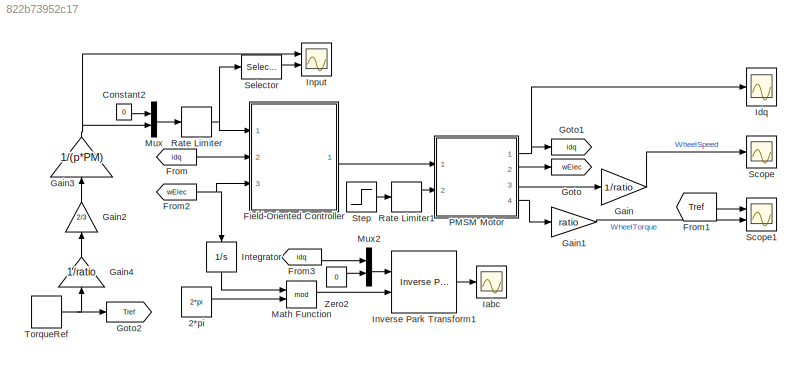
MODEL slx_822b73952c17
KIND model
CONFIG AbsTol = auto
CONFIG EnableMultiTasking = off
CONFIG FixedStep = auto
CONFIG InitFcn = %DriveTrainInitialise;
CONFIG MaxStep = 1e-5
CONFIG MinStep = auto
CONFIG RelTol = 1e-3
CONFIG SampleTimeConstraint = Unconstrained
CONFIG Solver = VariableStepAuto
CONFIG SolverName = VariableStepAuto
CONFIG StartTime = 0.0
CONFIG StopTime = 2
BLOCK [Constant] 2*pi
  SampleTime = Tsc
  Value = 2*pi
BLOCK [Constant] Constant2
  Value = 0
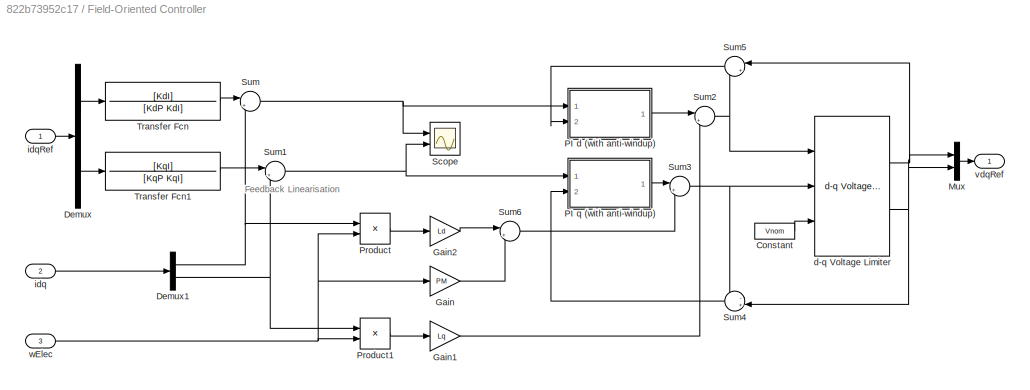
BLOCK [SubSystem] Field-Oriented Controller
  Ports = [3, 1]
  RequestExecContextInheritance = off
BLOCK [Constant] Field-Oriented Controller/Constant
  Value = Vnom
BLOCK [Demux] Field-Oriented Controller/Demux
  DisplayOption = bar
  Outputs = 2
  Ports = [1, 2]
BLOCK [Demux] Field-Oriented Controller/Demux1
  DisplayOption = bar
  Outputs = 2
  Ports = [1, 2]
BLOCK [Gain] Field-Oriented Controller/Gain
  Gain = PM
  OutDataTypeStr = Inherit: Inherit via internal rule
  ParamDataTypeStr = Inherit: Inherit via internal rule
  SaturateOnIntegerOverflow = off
BLOCK [Gain] Field-Oriented Controller/Gain1
  Gain = Lq
  OutDataTypeStr = Inherit: Inherit via internal rule
  ParamDataTypeStr = Inherit: Inherit via internal rule
  SaturateOnIntegerOverflow = off
BLOCK [Gain] Field-Oriented Controller/Gain2
  Gain = Ld
  OutDataTypeStr = Inherit: Inherit via internal rule
  ParamDataTypeStr = Inherit: Inherit via internal rule
  SaturateOnIntegerOverflow = off
BLOCK [Mux] Field-Oriented Controller/Mux
  DisplayOption = bar
  Inputs = 2
  Ports = [2, 1]
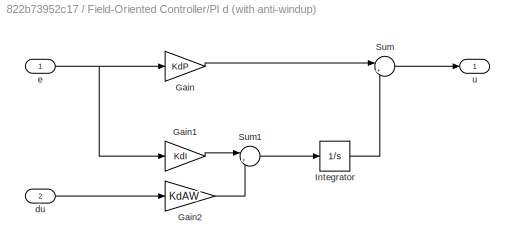
BLOCK [SubSystem] Field-Oriented Controller/PI d (with anti-windup)
  Ports = [2, 1]
  RequestExecContextInheritance = off
BLOCK [Gain] Field-Oriented Controller/PI d (with anti-windup)/Gain
  Gain = KdP
  OutDataTypeStr = Inherit: Inherit via internal rule
  ParamDataTypeStr = Inherit: Inherit via internal rule
  SaturateOnIntegerOverflow = off
BLOCK [Gain] Field-Oriented Controller/PI d (with anti-windup)/Gain1
  Gain = KdI
  OutDataTypeStr = Inherit: Inherit via internal rule
  ParamDataTypeStr = Inherit: Inherit via internal rule
  SaturateOnIntegerOverflow = off
BLOCK [Gain] Field-Oriented Controller/PI d (with anti-windup)/Gain2
  Gain = KdAW
  OutDataTypeStr = Inherit: Inherit via internal rule
  ParamDataTypeStr = Inherit: Inherit via internal rule
  SaturateOnIntegerOverflow = off
BLOCK [Integrator] Field-Oriented Controller/PI d (with anti-windup)/Integrator
  Ports = [1, 1]
BLOCK [Sum] Field-Oriented Controller/PI d (with anti-windup)/Sum
  IconShape = round
  InputSameDT = off
  Inputs = |++
  OutDataTypeStr = Inherit: Inherit via internal rule
  Ports = [2, 1]
  SaturateOnIntegerOverflow = off
BLOCK [Sum] Field-Oriented Controller/PI d (with anti-windup)/Sum1
  IconShape = round
  InputSameDT = off
  Inputs = |++
  OutDataTypeStr = Inherit: Inherit via internal rule
  Ports = [2, 1]
  SaturateOnIntegerOverflow = off
BLOCK [Inport] Field-Oriented Controller/PI d (with anti-windup)/du
  IconDisplay = Port number
  Port = 2
  SampleTime = Ts
BLOCK [Inport] Field-Oriented Controller/PI d (with anti-windup)/e
  IconDisplay = Port number
  SampleTime = Ts
BLOCK [Outport] Field-Oriented Controller/PI d (with anti-windup)/u
  IconDisplay = Port number
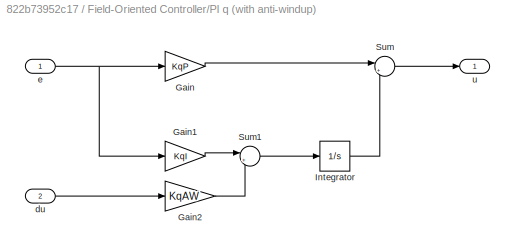
BLOCK [SubSystem] Field-Oriented Controller/PI q (with anti-windup)
  Ports = [2, 1]
  RequestExecContextInheritance = off
BLOCK [Gain] Field-Oriented Controller/PI q (with anti-windup)/Gain
  Gain = KqP
  OutDataTypeStr = Inherit: Inherit via internal rule
  ParamDataTypeStr = Inherit: Inherit via internal rule
  SaturateOnIntegerOverflow = off
BLOCK [Gain] Field-Oriented Controller/PI q (with anti-windup)/Gain1
  Gain = KqI
  OutDataTypeStr = Inherit: Inherit via internal rule
  ParamDataTypeStr = Inherit: Inherit via internal rule
  SaturateOnIntegerOverflow = off
BLOCK [Gain] Field-Oriented Controller/PI q (with anti-windup)/Gain2
  Gain = KqAW
  OutDataTypeStr = Inherit: Inherit via internal rule
  ParamDataTypeStr = Inherit: Inherit via internal rule
  SaturateOnIntegerOverflow = off
BLOCK [Integrator] Field-Oriented Controller/PI q (with anti-windup)/Integrator
  Ports = [1, 1]
BLOCK [Sum] Field-Oriented Controller/PI q (with anti-windup)/Sum
  IconShape = round
  InputSameDT = off
  Inputs = |++
  OutDataTypeStr = Inherit: Inherit via internal rule
  Ports = [2, 1]
  SaturateOnIntegerOverflow = off
BLOCK [Sum] Field-Oriented Controller/PI q (with anti-windup)/Sum1
  IconShape = round
  InputSameDT = off
  Inputs = |++
  OutDataTypeStr = Inherit: Inherit via internal rule
  Ports = [2, 1]
  SaturateOnIntegerOverflow = off
BLOCK [Inport] Field-Oriented Controller/PI q (with anti-windup)/du
  IconDisplay = Port number
  Port = 2
  SampleTime = Ts
BLOCK [Inport] Field-Oriented Controller/PI q (with anti-windup)/e
  IconDisplay = Port number
  SampleTime = Ts
BLOCK [Outport] Field-Oriented Controller/PI q (with anti-windup)/u
  IconDisplay = Port number
BLOCK [Product] Field-Oriented Controller/Product
  InputSameDT = off
  OutDataTypeStr = Inherit: Inherit via internal rule
  Ports = [2, 1]
  RndMeth = Floor
  SaturateOnIntegerOverflow = off
BLOCK [Product] Field-Oriented Controller/Product1
  InputSameDT = off
  OutDataTypeStr = Inherit: Inherit via internal rule
  Ports = [2, 1]
  RndMeth = Floor
  SaturateOnIntegerOverflow = off
BLOCK [Scope] Field-Oriented Controller/Scope
  Floating = off
  NumInputPorts = 2
  Ports = [2]
  ScopeSpecificationString = Simulink.scopes.TimeScopeBlockCfg('CurrentConfiguration', extmgr.ConfigurationSet(extmgr.Configuration('Core','General UI',true),extmgr.Configuration('Core','Source UI',true),extmgr.Configuration('Sources','WiredSimulink',true,'DataLoggingVariableName','ScopeData2'),extmgr.Configuration('Visuals','Time Domain',true,'SerializedDisplays',{struct('MinYLimReal','-0.00737','MaxYLimReal','0.06634','YLab...<+1396ch>
BLOCK [Sum] Field-Oriented Controller/Sum
  IconShape = round
  InputSameDT = off
  Inputs = |+-
  OutDataTypeStr = Inherit: Inherit via internal rule
  Ports = [2, 1]
  SaturateOnIntegerOverflow = off
BLOCK [Sum] Field-Oriented Controller/Sum1
  IconShape = round
  InputSameDT = off
  Inputs = |+-
  OutDataTypeStr = Inherit: Inherit via internal rule
  Ports = [2, 1]
  SaturateOnIntegerOverflow = off
BLOCK [Sum] Field-Oriented Controller/Sum2
  IconShape = round
  InputSameDT = off
  Inputs = |+-
  OutDataTypeStr = Inherit: Inherit via internal rule
  Ports = [2, 1]
  SaturateOnIntegerOverflow = off
BLOCK [Sum] Field-Oriented Controller/Sum3
  IconShape = round
  InputSameDT = off
  Inputs = |++
  OutDataTypeStr = Inherit: Inherit via internal rule
  Ports = [2, 1]
  SaturateOnIntegerOverflow = off
BLOCK [Sum] Field-Oriented Controller/Sum4
  IconShape = round
  InputSameDT = off
  Inputs = -+|
  OutDataTypeStr = Inherit: Inherit via internal rule
  Ports = [2, 1]
  SaturateOnIntegerOverflow = off
BLOCK [Sum] Field-Oriented Controller/Sum5
  IconShape = round
  InputSameDT = off
  Inputs = |+-
  OutDataTypeStr = Inherit: Inherit via internal rule
  Ports = [2, 1]
  SaturateOnIntegerOverflow = off
BLOCK [Sum] Field-Oriented Controller/Sum6
  IconShape = round
  InputSameDT = off
  Inputs = |++
  OutDataTypeStr = Inherit: Inherit via internal rule
  Ports = [2, 1]
  SaturateOnIntegerOverflow = off
BLOCK [TransferFcn] Field-Oriented Controller/Transfer Fcn
  Denominator = [KdP KdI]
  Numerator = [KdI]
BLOCK [TransferFcn] Field-Oriented Controller/Transfer Fcn1
  Denominator = [KqP KqI]
  Numerator = [KqI]
BLOCK [Reference] Field-Oriented Controller/d-q Voltage Limiter  REF=eeDqVoltageLimiter/d-q Voltage Limiter
  Ports = [3, 2]
  SourceBlock = eeDqVoltageLimiter/d-q Voltage Limiter
  SourceProductBaseCode = PS
  SourceProductName = Simscape Electrical
  SourceType = d-q Voltage Limiter
BLOCK [Inport] Field-Oriented Controller/idq
  IconDisplay = Port number
  Port = 2
  SampleTime = Ts
BLOCK [Inport] Field-Oriented Controller/idqRef
  IconDisplay = Port number
  SampleTime = Ts
BLOCK [Outport] Field-Oriented Controller/vdqRef
  IconDisplay = Port number
BLOCK [Inport] Field-Oriented Controller/wElec
  IconDisplay = Port number
  Port = 3
  SampleTime = Ts
BLOCK [From] From
  GotoTag = idq
BLOCK [From] From1
  GotoTag = Tref
BLOCK [From] From2
  GotoTag = wElec
BLOCK [From] From3
  GotoTag = idq
BLOCK [Gain] Gain
  Gain = 1/ratio
  OutDataTypeStr = Inherit: Inherit via internal rule
  ParamDataTypeStr = Inherit: Inherit via internal rule
  SaturateOnIntegerOverflow = off
BLOCK [Gain] Gain1
  Gain = ratio
  OutDataTypeStr = Inherit: Inherit via internal rule
  ParamDataTypeStr = Inherit: Inherit via internal rule
  SaturateOnIntegerOverflow = off
BLOCK [Gain] Gain2
  Gain = 2/3
  OutDataTypeStr = Inherit: Inherit via internal rule
  ParamDataTypeStr = Inherit: Inherit via internal rule
  SaturateOnIntegerOverflow = off
BLOCK [Gain] Gain3
  Gain = 1/(p*PM)
  OutDataTypeStr = Inherit: Inherit via internal rule
  ParamDataTypeStr = Inherit: Inherit via internal rule
  SaturateOnIntegerOverflow = off
BLOCK [Gain] Gain4
  Gain = 1/ratio
  OutDataTypeStr = Inherit: Inherit via internal rule
  ParamDataTypeStr = Inherit: Inherit via internal rule
  SaturateOnIntegerOverflow = off
BLOCK [Goto] Goto
  GotoTag = wElec
BLOCK [Goto] Goto1
  GotoTag = idq
BLOCK [Goto] Goto2
  GotoTag = Tref
BLOCK [Scope] Iabc
  Floating = off
  NumInputPorts = 1
  Ports = [1]
  ScopeSpecificationString = Simulink.scopes.TimeScopeBlockCfg('CurrentConfiguration', extmgr.ConfigurationSet(extmgr.Configuration('Core','General UI',true),extmgr.Configuration('Core','Source UI',true),extmgr.Configuration('Sources','WiredSimulink',true,'DataLoggingVariableName','ScopeData1'),extmgr.Configuration('Visuals','Time Domain',true,'SerializedDisplays',{struct('MinYLimReal','-64.84535','MaxYLimReal','64.84534','YL...<+1494ch>
BLOCK [Scope] Idq
  Floating = off
  NumInputPorts = 1
  Ports = [1]
  ScopeSpecificationString = Simulink.scopes.TimeScopeBlockCfg('CurrentConfiguration', extmgr.ConfigurationSet(extmgr.Configuration('Core','General UI',true),extmgr.Configuration('Core','Source UI',true),extmgr.Configuration('Sources','WiredSimulink',true,'DataLoggingVariableName','ScopeData3'),extmgr.Configuration('Visuals','Time Domain',true,'SerializedDisplays',{struct('MinYLimReal','-6.54294','MaxYLimReal','58.36734','YLa...<+1394ch>
BLOCK [Scope] Input
  Floating = off
  NumInputPorts = 2
  Ports = [2]
  ScopeSpecificationString = Simulink.scopes.TimeScopeBlockCfg('CurrentConfiguration', extmgr.ConfigurationSet(extmgr.Configuration('Core','General UI',true),extmgr.Configuration('Core','Source UI',true),extmgr.Configuration('Sources','WiredSimulink',true,'DataLoggingVariableName','ScopeData4'),extmgr.Configuration('Visuals','Time Domain',true,'SerializedDisplays',{struct('MinYLimReal','-0.98603','MaxYLimReal','8.87424','YLab...<+1499ch>
BLOCK [Integrator] Integrator
  Ports = [1, 1]
BLOCK [Reference] Inverse Park Transform1  REF=eeTransforms/Inverse
Park Transform
  Ports = [2, 1]
  SourceBlock = eeTransforms/Inverse\nPark Transform
  SourceProductBaseCode = PS
  SourceProductName = Simscape Electrical
  SourceType = Inverse Park Transform
BLOCK [Math] Math Function
  Operator = mod
  Ports = [2, 1]
BLOCK [Mux] Mux
  DisplayOption = bar
  Inputs = 2
  Ports = [2, 1]
BLOCK [Mux] Mux2
  DisplayOption = bar
  Inputs = 2
  Ports = [2, 1]
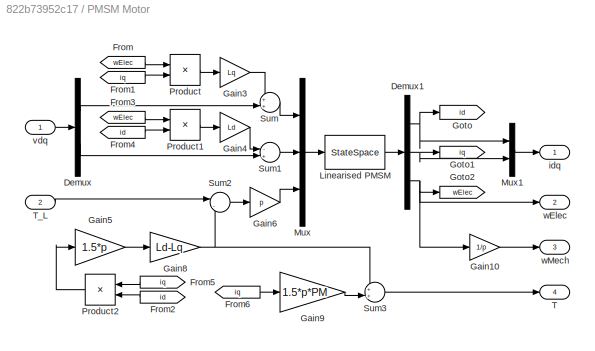
BLOCK [SubSystem] PMSM Motor
  Ports = [2, 4]
  RequestExecContextInheritance = off
BLOCK [Demux] PMSM Motor/Demux
  DisplayOption = bar
  Outputs = 2
  Ports = [1, 2]
BLOCK [Demux] PMSM Motor/Demux1
  DisplayOption = bar
  Outputs = 3
  Ports = [1, 3]
BLOCK [From] PMSM Motor/From
  GotoTag = wElec
BLOCK [From] PMSM Motor/From1
  GotoTag = iq
BLOCK [From] PMSM Motor/From2
  GotoTag = id
BLOCK [From] PMSM Motor/From3
  GotoTag = wElec
BLOCK [From] PMSM Motor/From4
  GotoTag = id
BLOCK [From] PMSM Motor/From5
  GotoTag = iq
BLOCK [From] PMSM Motor/From6
  GotoTag = iq
BLOCK [Gain] PMSM Motor/Gain10
  Gain = 1/p
  OutDataTypeStr = Inherit: Inherit via internal rule
  ParamDataTypeStr = Inherit: Inherit via internal rule
  SaturateOnIntegerOverflow = off
BLOCK [Gain] PMSM Motor/Gain3
  Gain = Lq
  OutDataTypeStr = Inherit: Inherit via internal rule
  ParamDataTypeStr = Inherit: Inherit via internal rule
  SaturateOnIntegerOverflow = off
BLOCK [Gain] PMSM Motor/Gain4
  Gain = Ld
  OutDataTypeStr = Inherit: Inherit via internal rule
  ParamDataTypeStr = Inherit: Inherit via internal rule
  SaturateOnIntegerOverflow = off
BLOCK [Gain] PMSM Motor/Gain5
  Gain = 1.5*p
  OutDataTypeStr = Inherit: Inherit via internal rule
  ParamDataTypeStr = Inherit: Inherit via internal rule
  SaturateOnIntegerOverflow = off
BLOCK [Gain] PMSM Motor/Gain6
  Gain = p
  OutDataTypeStr = Inherit: Inherit via internal rule
  ParamDataTypeStr = Inherit: Inherit via internal rule
  SaturateOnIntegerOverflow = off
BLOCK [Gain] PMSM Motor/Gain8
  Gain = Ld-Lq
  OutDataTypeStr = Inherit: Inherit via internal rule
  ParamDataTypeStr = Inherit: Inherit via internal rule
  SaturateOnIntegerOverflow = off
BLOCK [Gain] PMSM Motor/Gain9
  Gain = 1.5*p*PM
  OutDataTypeStr = Inherit: Inherit via internal rule
  ParamDataTypeStr = Inherit: Inherit via internal rule
  SaturateOnIntegerOverflow = off
BLOCK [Goto] PMSM Motor/Goto
  GotoTag = id
BLOCK [Goto] PMSM Motor/Goto1
  GotoTag = iq
BLOCK [Goto] PMSM Motor/Goto2
  GotoTag = wElec
BLOCK [StateSpace] PMSM Motor/Linearised PMSM 
  A = inv(diag([Ld,Lq,J]))*[-Rs, 0, 0; 0, -Rs, -PM; 0, 1.5*(p^2)*PM, -D]
  B = inv(diag([Ld,Lq,J]))*eye(3)
  C = eye(3)
  D = zeros(3)
  InitialCondition = 0
  Ports = [1, 1]
BLOCK [Mux] PMSM Motor/Mux
  DisplayOption = bar
  Inputs = 3
  Ports = [3, 1]
BLOCK [Mux] PMSM Motor/Mux1
  DisplayOption = bar
  Inputs = 2
  Ports = [2, 1]
BLOCK [Product] PMSM Motor/Product
  InputSameDT = off
  OutDataTypeStr = Inherit: Inherit via internal rule
  Ports = [2, 1]
  RndMeth = Floor
  SaturateOnIntegerOverflow = off
BLOCK [Product] PMSM Motor/Product1
  InputSameDT = off
  OutDataTypeStr = Inherit: Inherit via internal rule
  Ports = [2, 1]
  RndMeth = Floor
  SaturateOnIntegerOverflow = off
BLOCK [Product] PMSM Motor/Product2
  InputSameDT = off
  OutDataTypeStr = Inherit: Inherit via internal rule
  Ports = [2, 1]
  RndMeth = Floor
  SaturateOnIntegerOverflow = off
BLOCK [Sum] PMSM Motor/Sum
  IconShape = round
  InputSameDT = off
  Inputs = ++|
  OutDataTypeStr = Inherit: Inherit via internal rule
  Ports = [2, 1]
  SaturateOnIntegerOverflow = off
BLOCK [Sum] PMSM Motor/Sum1
  IconShape = round
  InputSameDT = off
  Inputs = -+|
  OutDataTypeStr = Inherit: Inherit via internal rule
  Ports = [2, 1]
  SaturateOnIntegerOverflow = off
BLOCK [Sum] PMSM Motor/Sum2
  IconShape = round
  InputSameDT = off
  Inputs = |-+
  OutDataTypeStr = Inherit: Inherit via internal rule
  Ports = [2, 1]
  SaturateOnIntegerOverflow = off
BLOCK [Sum] PMSM Motor/Sum3
  IconShape = round
  InputSameDT = off
  Inputs = ++|
  OutDataTypeStr = Inherit: Inherit via internal rule
  Ports = [2, 1]
  SaturateOnIntegerOverflow = off
BLOCK [Outport] PMSM Motor/T
  IconDisplay = Port number
  Port = 4
BLOCK [Inport] PMSM Motor/T_L
  IconDisplay = Port number
  Port = 2
BLOCK [Outport] PMSM Motor/idq 
  IconDisplay = Port number
BLOCK [Inport] PMSM Motor/vdq
  IconDisplay = Port number
BLOCK [Outport] PMSM Motor/wElec
  IconDisplay = Port number
  Port = 2
BLOCK [Outport] PMSM Motor/wMech
  IconDisplay = Port number
  Port = 3
BLOCK [RateLimiter] Rate Limiter
  Commented = through
  FallingSlewLimit = -rate
  RisingSlewLimit = rate
  SampleTimeMode = inherited
BLOCK [RateLimiter] Rate Limiter1
  FallingSlewLimit = -rate
  RisingSlewLimit = rate
  SampleTimeMode = inherited
BLOCK [Scope] Scope
  Floating = off
  NumInputPorts = 1
  Ports = [1]
  ScopeSpecificationString = Simulink.scopes.TimeScopeBlockCfg('CurrentConfiguration', extmgr.ConfigurationSet(extmgr.Configuration('Core','General UI',true),extmgr.Configuration('Core','Source UI',true),extmgr.Configuration('Sources','WiredSimulink',true,'DataLoggingVariableName','ScopeData1'),extmgr.Configuration('Visuals','Time Domain',true,'SerializedDisplays',{struct('MinYLimReal','-14.34401','MaxYLimReal','128.98744','Y...<+1435ch>
BLOCK [Scope] Scope1
  Floating = off
  NumInputPorts = 2
  Ports = [2]
  ScopeSpecificationString = Simulink.scopes.TimeScopeBlockCfg('CurrentConfiguration', extmgr.ConfigurationSet(extmgr.Configuration('Core','General UI',true),extmgr.Configuration('Core','Source UI',true),extmgr.Configuration('Sources','WiredSimulink',true,'DataLoggingVariableName','ScopeData2'),extmgr.Configuration('Visuals','Time Domain',true,'SerializedDisplays',{struct('MinYLimReal','-12.50014','MaxYLimReal','112.50017','Y...<+1467ch>
BLOCK [Selector] Selector
  IndexOptions = Index vector (dialog)
  Indices = [2]
  InputPortWidth = 2
  OutputSizes = 1
  Ports = [1, 1]
BLOCK [Step] Step
  After = TL
  SampleTime = 0
  Time = 0
BLOCK [DiscretePulseGenerator] TorqueRef
  Amplitude = 100
  Period = 0.5
  PhaseDelay = 0.1
  Ports = [0, 1]
  PulseType = Time based
  PulseWidth = 50
BLOCK [Constant] Zero2
  OutDataTypeStr = Inherit: Inherit via back propagation
  Value = 0
ANNOTATION Field-Oriented Controller: Feedback Linearisation
LINE 2*pi:1 -> Math Function:2
LINE Constant2:1 -> Mux:1
LINE Field-Oriented Controller/Constant:1 -> Field-Oriented Controller/d-q Voltage Limiter:3
NET Field-Oriented Controller/Demux1:1 -> Field-Oriented Controller/Product:1, Field-Oriented Controller/Sum:2
NET Field-Oriented Controller/Demux1:2 -> Field-Oriented Controller/Product1:1, Field-Oriented Controller/Sum1:2
LINE Field-Oriented Controller/Demux:1 -> Field-Oriented Controller/Transfer Fcn:1
LINE Field-Oriented Controller/Demux:2 -> Field-Oriented Controller/Transfer Fcn1:1
LINE Field-Oriented Controller/Gain1:1 -> Field-Oriented Controller/Sum2:2
LINE Field-Oriented Controller/Gain2:1 -> Field-Oriented Controller/Sum6:1
LINE Field-Oriented Controller/Gain:1 -> Field-Oriented Controller/Sum6:2
LINE Field-Oriented Controller/Mux:1 -> Field-Oriented Controller/vdqRef:1
LINE Field-Oriented Controller/PI d (with anti-windup)/Gain1:1 -> Field-Oriented Controller/PI d (with anti-windup)/Sum1:1
LINE Field-Oriented Controller/PI d (with anti-windup)/Gain2:1 -> Field-Oriented Controller/PI d (with anti-windup)/Sum1:2
LINE Field-Oriented Controller/PI d (with anti-windup)/Gain:1 -> Field-Oriented Controller/PI d (with anti-windup)/Sum:1
LINE Field-Oriented Controller/PI d (with anti-windup)/Integrator:1 -> Field-Oriented Controller/PI d (with anti-windup)/Sum:2
LINE Field-Oriented Controller/PI d (with anti-windup)/Sum1:1 -> Field-Oriented Controller/PI d (with anti-windup)/Integrator:1
LINE Field-Oriented Controller/PI d (with anti-windup)/Sum:1 -> Field-Oriented Controller/PI d (with anti-windup)/u:1
LINE Field-Oriented Controller/PI d (with anti-windup)/du:1 -> Field-Oriented Controller/PI d (with anti-windup)/Gain2:1
NET Field-Oriented Controller/PI d (with anti-windup)/e:1 -> Field-Oriented Controller/PI d (with anti-windup)/Gain1:1, Field-Oriented Controller/PI d (with anti-windup)/Gain:1
LINE Field-Oriented Controller/PI d (with anti-windup):1 -> Field-Oriented Controller/Sum2:1
LINE Field-Oriented Controller/PI q (with anti-windup)/Gain1:1 -> Field-Oriented Controller/PI q (with anti-windup)/Sum1:1
LINE Field-Oriented Controller/PI q (with anti-windup)/Gain2:1 -> Field-Oriented Controller/PI q (with anti-windup)/Sum1:2
LINE Field-Oriented Controller/PI q (with anti-windup)/Gain:1 -> Field-Oriented Controller/PI q (with anti-windup)/Sum:1
LINE Field-Oriented Controller/PI q (with anti-windup)/Integrator:1 -> Field-Oriented Controller/PI q (with anti-windup)/Sum:2
LINE Field-Oriented Controller/PI q (with anti-windup)/Sum1:1 -> Field-Oriented Controller/PI q (with anti-windup)/Integrator:1
LINE Field-Oriented Controller/PI q (with anti-windup)/Sum:1 -> Field-Oriented Controller/PI q (with anti-windup)/u:1
LINE Field-Oriented Controller/PI q (with anti-windup)/du:1 -> Field-Oriented Controller/PI q (with anti-windup)/Gain2:1
NET Field-Oriented Controller/PI q (with anti-windup)/e:1 -> Field-Oriented Controller/PI q (with anti-windup)/Gain1:1, Field-Oriented Controller/PI q (with anti-windup)/Gain:1
LINE Field-Oriented Controller/PI q (with anti-windup):1 -> Field-Oriented Controller/Sum3:1
LINE Field-Oriented Controller/Product1:1 -> Field-Oriented Controller/Gain1:1
LINE Field-Oriented Controller/Product:1 -> Field-Oriented Controller/Gain2:1
NET Field-Oriented Controller/Sum1:1 -> Field-Oriented Controller/PI q (with anti-windup):1, Field-Oriented Controller/Scope:2
NET Field-Oriented Controller/Sum2:1 -> Field-Oriented Controller/Sum5:2, Field-Oriented Controller/d-q Voltage Limiter:1
NET Field-Oriented Controller/Sum3:1 -> Field-Oriented Controller/Sum4:1, Field-Oriented Controller/d-q Voltage Limiter:2
LINE Field-Oriented Controller/Sum4:1 -> Field-Oriented Controller/PI q (with anti-windup):2
LINE Field-Oriented Controller/Sum5:1 -> Field-Oriented Controller/PI d (with anti-windup):2
LINE Field-Oriented Controller/Sum6:1 -> Field-Oriented Controller/Sum3:2
NET Field-Oriented Controller/Sum:1 -> Field-Oriented Controller/PI d (with anti-windup):1, Field-Oriented Controller/Scope:1
LINE Field-Oriented Controller/Transfer Fcn1:1 -> Field-Oriented Controller/Sum1:1
LINE Field-Oriented Controller/Transfer Fcn:1 -> Field-Oriented Controller/Sum:1
NET Field-Oriented Controller/d-q Voltage Limiter:1 -> Field-Oriented Controller/Mux:1, Field-Oriented Controller/Sum5:1
NET Field-Oriented Controller/d-q Voltage Limiter:2 -> Field-Oriented Controller/Mux:2, Field-Oriented Controller/Sum4:2
LINE Field-Oriented Controller/idq:1 -> Field-Oriented Controller/Demux1:1
LINE Field-Oriented Controller/idqRef:1 -> Field-Oriented Controller/Demux:1
NET Field-Oriented Controller/wElec:1 -> Field-Oriented Controller/Gain:1, Field-Oriented Controller/Product1:2, Field-Oriented Controller/Product:2
LINE Field-Oriented Controller:1 -> PMSM Motor:1
LINE From1:1 -> Scope1:1
NET From2:1 -> Field-Oriented Controller:3, Integrator:1
LINE From3:1 -> Mux2:1
LINE From:1 -> Field-Oriented Controller:2
LINE Gain1:1 -> Scope1:2
LINE Gain2:1 -> Gain3:1
NET Gain3:1 -> Input:1, Mux:2
LINE Gain4:1 -> Gain2:1
LINE Gain:1 -> Scope:1
LINE Integrator:1 -> Math Function:1
LINE Inverse Park Transform1:1 -> Iabc:1
LINE Math Function:1 -> Inverse Park Transform1:2
LINE Mux2:1 -> Inverse Park Transform1:1
LINE Mux:1 -> Rate Limiter:1
NET PMSM Motor/Demux1:1 -> PMSM Motor/Goto:1, PMSM Motor/Mux1:1
NET PMSM Motor/Demux1:2 -> PMSM Motor/Goto1:1, PMSM Motor/Mux1:2
NET PMSM Motor/Demux1:3 -> PMSM Motor/Gain10:1, PMSM Motor/Goto2:1, PMSM Motor/wElec:1
LINE PMSM Motor/Demux:1 -> PMSM Motor/Sum:2
LINE PMSM Motor/Demux:2 -> PMSM Motor/Sum1:2
LINE PMSM Motor/From1:1 -> PMSM Motor/Product:2
LINE PMSM Motor/From2:1 -> PMSM Motor/Product2:2
LINE PMSM Motor/From3:1 -> PMSM Motor/Product1:1
LINE PMSM Motor/From4:1 -> PMSM Motor/Product1:2
LINE PMSM Motor/From5:1 -> PMSM Motor/Product2:1
LINE PMSM Motor/From6:1 -> PMSM Motor/Gain9:1
LINE PMSM Motor/From:1 -> PMSM Motor/Product:1
LINE PMSM Motor/Gain10:1 -> PMSM Motor/wMech:1
LINE PMSM Motor/Gain3:1 -> PMSM Motor/Sum:1
LINE PMSM Motor/Gain4:1 -> PMSM Motor/Sum1:1
LINE PMSM Motor/Gain5:1 -> PMSM Motor/Gain8:1
LINE PMSM Motor/Gain6:1 -> PMSM Motor/Mux:3
NET PMSM Motor/Gain8:1 -> PMSM Motor/Sum2:2, PMSM Motor/Sum3:1
LINE PMSM Motor/Gain9:1 -> PMSM Motor/Sum3:2
LINE PMSM Motor/Linearised PMSM :1 -> PMSM Motor/Demux1:1
LINE PMSM Motor/Mux1:1 -> PMSM Motor/idq :1
LINE PMSM Motor/Mux:1 -> PMSM Motor/Linearised PMSM :1
LINE PMSM Motor/Product1:1 -> PMSM Motor/Gain4:1
LINE PMSM Motor/Product2:1 -> PMSM Motor/Gain5:1
LINE PMSM Motor/Product:1 -> PMSM Motor/Gain3:1
LINE PMSM Motor/Sum1:1 -> PMSM Motor/Mux:2
LINE PMSM Motor/Sum2:1 -> PMSM Motor/Gain6:1
LINE PMSM Motor/Sum3:1 -> PMSM Motor/T:1
LINE PMSM Motor/Sum:1 -> PMSM Motor/Mux:1
LINE PMSM Motor/T_L:1 -> PMSM Motor/Sum2:1
LINE PMSM Motor/vdq:1 -> PMSM Motor/Demux:1
NET PMSM Motor:1 -> Goto1:1, Idq:1
LINE PMSM Motor:2 -> Goto:1
LINE PMSM Motor:3 -> Gain:1
LINE PMSM Motor:4 -> Gain1:1
LINE Rate Limiter1:1 -> PMSM Motor:2
NET Rate Limiter:1 -> Field-Oriented Controller:1, Selector:1
LINE Selector:1 -> Input:2
LINE Step:1 -> Rate Limiter1:1
NET TorqueRef:1 -> Gain4:1, Goto2:1
LINE Zero2:1 -> Mux2:2
note: NET lines group one-source signal fan-out (src -> all destinations, sorted); 1:1 wires keep LINE
